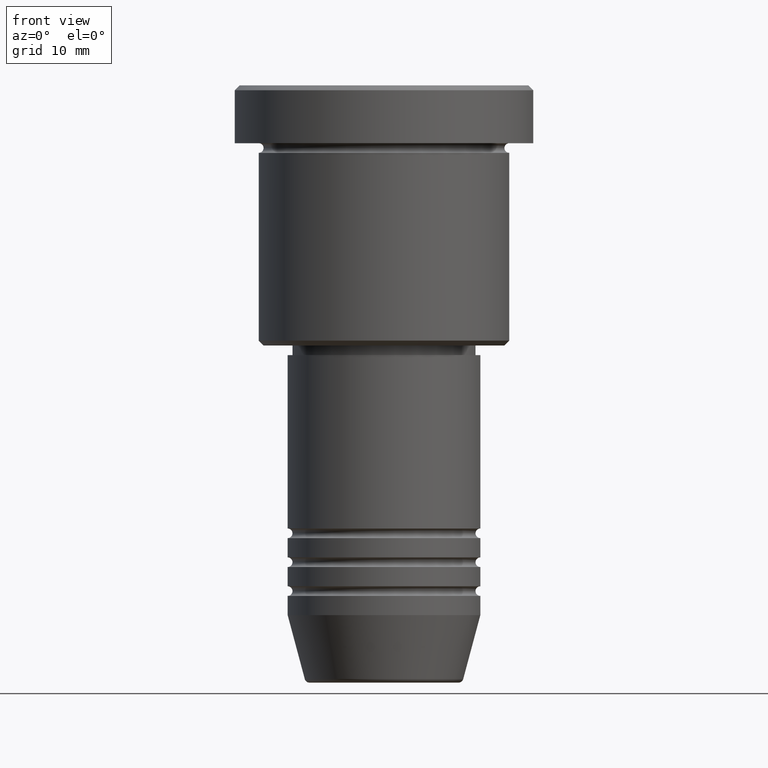
[diagram: clean part render]
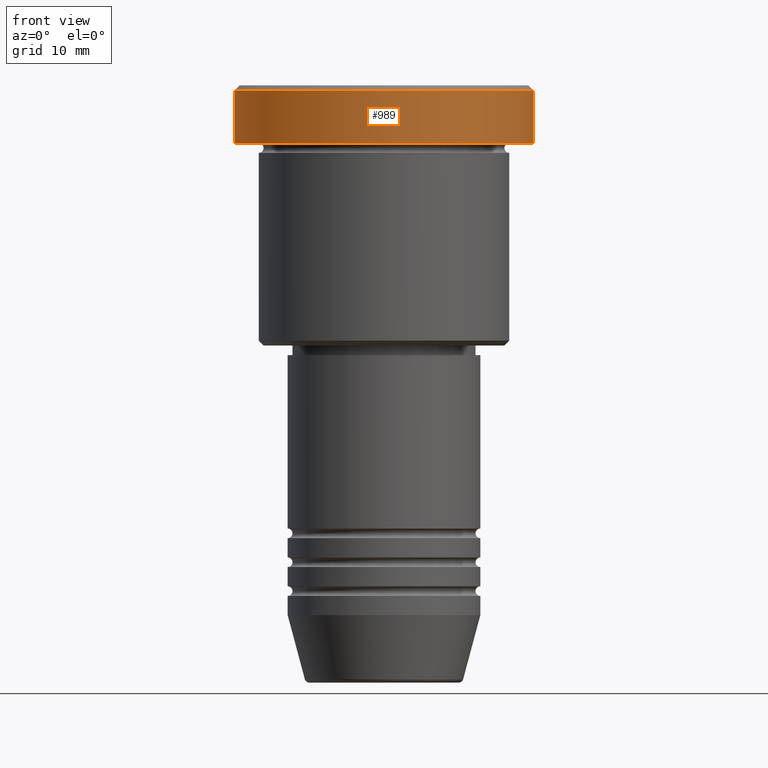
[diagram: same view with one face highlighted and labeled with its STEP entity id]
A machine part, front view. The second image highlights one B-rep face of the part: STEP entity #989.
In plain terms, the highlighted cylindrical surface (partial cylindrical patch) has radius 15.5 mm, axis along (-0, -0, 1).
Its self-contained STEP definition (entity closure, byte-faithful):
#1 = DIRECTION ( 'NONE',  ( -0.000000000000000000, -0.000000000000000000, 1.000000000000000000 ) ) ;
#56 = CARTESIAN_POINT ( 'NONE',  ( 15.50000000000000000, 0.000000000000000000, -0.5000000000000196509 ) ) ;
#67 = CARTESIAN_POINT ( 'NONE',  ( -15.50000000000000000, 1.898202538678397557E-15, 0.000000000000000000 ) ) ;
#130 = VERTEX_POINT ( 'NONE', #636 ) ;
#157 = VERTEX_POINT ( 'NONE', #956 ) ;
#158 = EDGE_CURVE ( 'NONE', #535, #130, #881, .T. ) ;
#173 = CARTESIAN_POINT ( 'NONE',  ( 15.50000000000000000, 0.000000000000000000, 0.000000000000000000 ) ) ;
#178 = CARTESIAN_POINT ( 'NONE',  ( 0.000000000000000000, 0.000000000000000000, 0.000000000000000000 ) ) ;
#315 = VECTOR ( 'NONE', #1, 1000.000000000000000 ) ;
#330 = EDGE_CURVE ( 'NONE', #963, #130, #501, .T. ) ;
#335 = AXIS2_PLACEMENT_3D ( 'NONE', #178, #1108, #646 ) ;
#350 = DIRECTION ( 'NONE',  ( 1.000000000000000000, 0.000000000000000000, 0.000000000000000000 ) ) ;
#358 = DIRECTION ( 'NONE',  ( -0.000000000000000000, -0.000000000000000000, 1.000000000000000000 ) ) ;
#375 = ORIENTED_EDGE ( 'NONE', *, *, #586, .T. ) ;
#390 = AXIS2_PLACEMENT_3D ( 'NONE', #744, #1118, #830 ) ;
#395 = ORIENTED_EDGE ( 'NONE', *, *, #1071, .T. ) ;
#421 = VECTOR ( 'NONE', #1163, 1000.000000000000000 ) ;
#501 = CIRCLE ( 'NONE', #390, 15.50000000000000000 ) ;
#514 = EDGE_LOOP ( 'NONE', ( #939, #395, #375, #959 ) ) ;
#535 = VERTEX_POINT ( 'NONE', #955 ) ;
#586 = EDGE_CURVE ( 'NONE', #157, #963, #723, .T. ) ;
#636 = CARTESIAN_POINT ( 'NONE',  ( -15.50000000000000000, 1.898202538678397557E-15, -0.5000000000000196509 ) ) ;
#646 = DIRECTION ( 'NONE',  ( 1.000000000000000000, 0.000000000000000000, 0.000000000000000000 ) ) ;
#715 = CIRCLE ( 'NONE', #807, 15.50000000000000000 ) ;
#723 = LINE ( 'NONE', #173, #315 ) ;
#744 = CARTESIAN_POINT ( 'NONE',  ( 0.000000000000000000, 0.000000000000000000, -0.5000000000000196509 ) ) ;
#807 = AXIS2_PLACEMENT_3D ( 'NONE', #810, #358, #350 ) ;
#810 = CARTESIAN_POINT ( 'NONE',  ( 0.000000000000000000, 0.000000000000000000, -5.999999999999995559 ) ) ;
#830 = DIRECTION ( 'NONE',  ( 1.000000000000000000, 0.000000000000000000, 0.000000000000000000 ) ) ;
#881 = LINE ( 'NONE', #67, #421 ) ;
#917 = CYLINDRICAL_SURFACE ( 'NONE', #335, 15.50000000000000000 ) ;
#939 = ORIENTED_EDGE ( 'NONE', *, *, #158, .F. ) ;
#955 = CARTESIAN_POINT ( 'NONE',  ( -15.50000000000000000, 1.898202538678397557E-15, -5.999999999999995559 ) ) ;
#956 = CARTESIAN_POINT ( 'NONE',  ( 15.50000000000000000, 0.000000000000000000, -5.999999999999995559 ) ) ;
#959 = ORIENTED_EDGE ( 'NONE', *, *, #330, .T. ) ;
#963 = VERTEX_POINT ( 'NONE', #56 ) ;
#989 = ADVANCED_FACE ( 'NONE', ( #1087 ), #917, .T. ) ;
#1071 = EDGE_CURVE ( 'NONE', #535, #157, #715, .T. ) ;
#1087 = FACE_OUTER_BOUND ( 'NONE', #514, .T. ) ;
#1108 = DIRECTION ( 'NONE',  ( -0.000000000000000000, -0.000000000000000000, 1.000000000000000000 ) ) ;
#1118 = DIRECTION ( 'NONE',  ( 0.000000000000000000, 0.000000000000000000, -1.000000000000000000 ) ) ;
#1163 = DIRECTION ( 'NONE',  ( -0.000000000000000000, -0.000000000000000000, 1.000000000000000000 ) ) ;